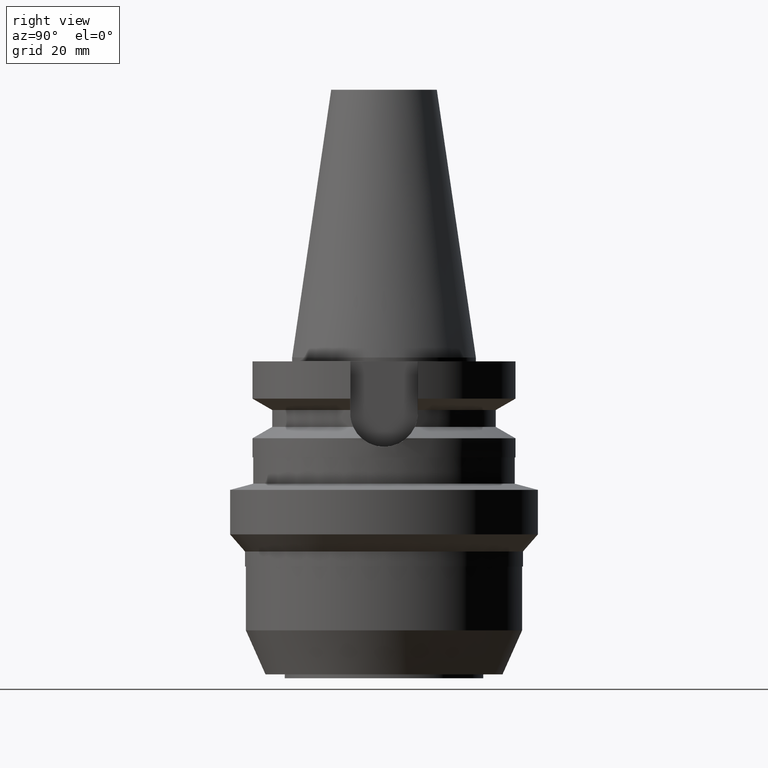
[diagram: clean part render]
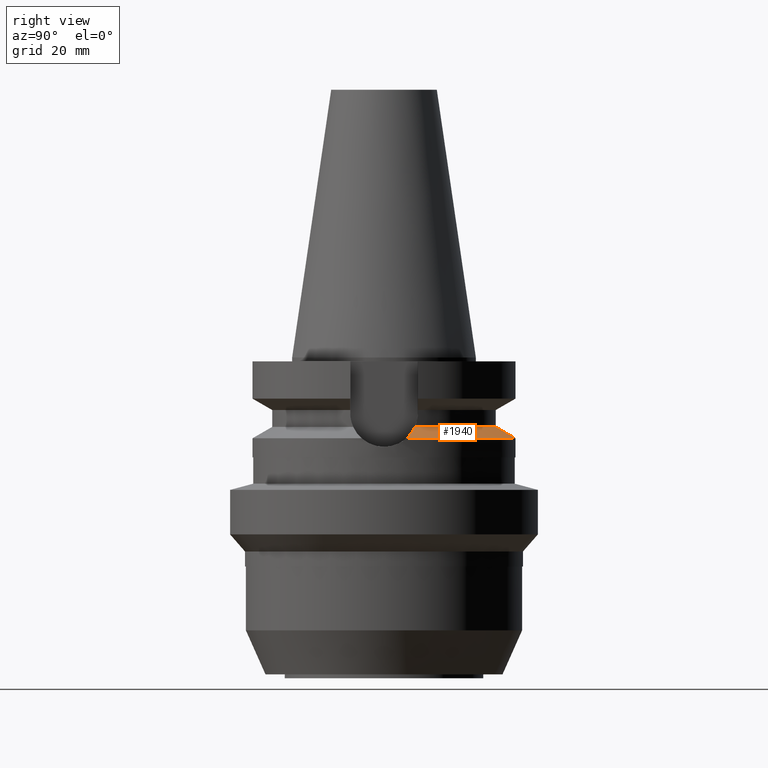
[diagram: same view with one face highlighted and labeled with its STEP entity id]
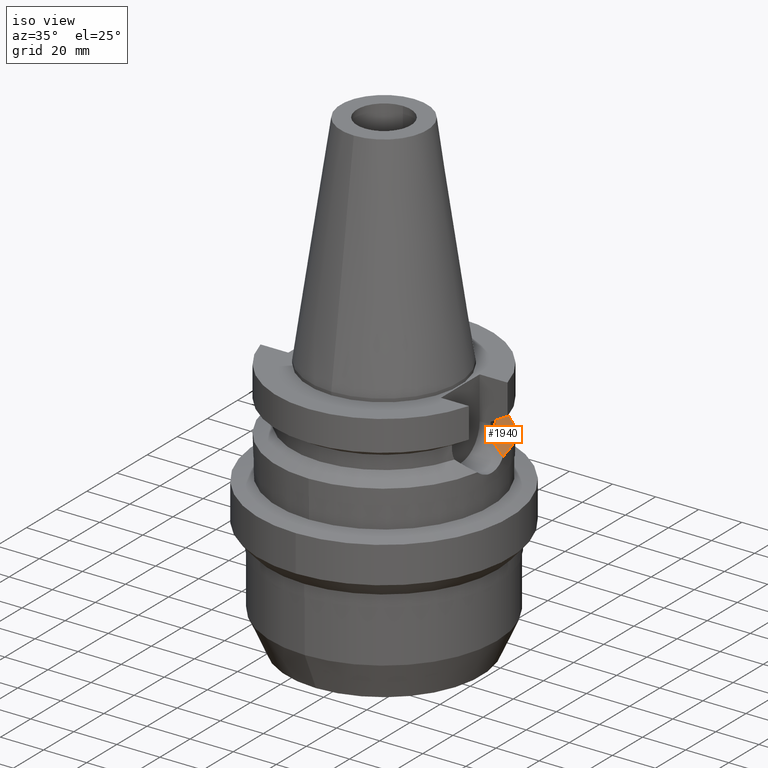
[diagram: same view with one face highlighted and labeled with its STEP entity id]
A machine part, right view. The second image highlights one B-rep face of the part: STEP entity #1940.
A second angle (iso view) of the same face is appended — the face is thin or edge-on in the first view.
In plain terms, the highlighted conical surface has half-angle 60 deg.
Its self-contained STEP definition (entity closure, byte-faithful):
#583=CARTESIAN_POINT('',(4.926250064874E1,8.556052234130E0,-3.073730776427E1));
#609=CARTESIAN_POINT('',(-4.085052569294E1,1.172538061688E1,-2.640718074535E1));
#610=CARTESIAN_POINT('',(-4.196772398692E1,1.146593540147E1,-2.698583574074E1));
#611=CARTESIAN_POINT('',(-4.408471845339E1,1.087427648019E1,-2.807895586455E1));
#612=CARTESIAN_POINT('',(-4.693477561632E1,9.783343029706E0,-2.954442286937E1));
#613=CARTESIAN_POINT('',(-4.853253796573E1,8.974952962019E0,-3.036346595207E1));
#614=CARTESIAN_POINT('',(-4.926250064874E1,8.556052234130E0,-3.073730776427E1));
#619=CARTESIAN_POINT('',(0.E0,0.E0,-3.073730776427E1));
#620=DIRECTION('',(0.E0,0.E0,-1.E0));
#621=DIRECTION('',(-9.852500129747E-1,1.711210446826E-1,0.E0));
#622=AXIS2_PLACEMENT_3D('',#619,#620,#621);
#627=CARTESIAN_POINT('',(0.E0,0.E0,-3.073730776427E1));
#628=DIRECTION('',(0.E0,0.E0,-1.E0));
#629=DIRECTION('',(0.E0,1.E0,0.E0));
#630=AXIS2_PLACEMENT_3D('',#627,#628,#629);
#635=CARTESIAN_POINT('',(4.926250064874E1,8.556052234130E0,-3.073730776427E1));
#636=CARTESIAN_POINT('',(4.853446079975E1,8.973849513052E0,-3.036445070892E1));
#637=CARTESIAN_POINT('',(4.693945517956E1,9.781250318963E0,-2.954682551157E1));
#638=CARTESIAN_POINT('',(4.408847198395E1,1.087313779766E1,-2.808089074029E1));
#639=CARTESIAN_POINT('',(4.196934671623E1,1.146555855757E1,-2.698667623649E1));
#640=CARTESIAN_POINT('',(4.085052569294E1,1.172538061688E1,-2.640718074535E1));
#645=CARTESIAN_POINT('',(0.E0,0.E0,-2.640718074535E1));
#646=DIRECTION('',(0.E0,0.E0,1.E0));
#647=DIRECTION('',(9.611888398338E-1,2.758913086325E-1,0.E0));
#648=AXIS2_PLACEMENT_3D('',#645,#646,#647);
#653=CARTESIAN_POINT('',(0.E0,0.E0,-2.640718074535E1));
#654=DIRECTION('',(0.E0,0.E0,1.E0));
#655=DIRECTION('',(0.E0,1.E0,0.E0));
#656=AXIS2_PLACEMENT_3D('',#653,#654,#655);
#1267=VERTEX_POINT('',#583);
#1269=CARTESIAN_POINT('',(0.E0,5.E1,-3.073730776427E1));
#1270=VERTEX_POINT('',#1269);
#1273=VERTEX_POINT('',#640);
#1288=VERTEX_POINT('',#609);
#1289=VERTEX_POINT('',#614);
#1290=CARTESIAN_POINT('',(0.E0,4.25E1,-2.640718074535E1));
#1291=VERTEX_POINT('',#1290);
#1923=CARTESIAN_POINT('',(0.E0,0.E0,-2.857224425481E1));
#1924=DIRECTION('',(0.E0,0.E0,-1.E0));
#1925=DIRECTION('',(0.E0,-1.E0,0.E0));
#1926=AXIS2_PLACEMENT_3D('',#1923,#1924,#1925);
#1927=CONICAL_SURFACE('',#1926,4.625E1,6.E1);
#1929=ORIENTED_EDGE('',*,*,#1928,.T.);
#1931=ORIENTED_EDGE('',*,*,#1930,.T.);
#1932=ORIENTED_EDGE('',*,*,#1885,.T.);
#1933=ORIENTED_EDGE('',*,*,#1902,.T.);
#1935=ORIENTED_EDGE('',*,*,#1934,.T.);
#1937=ORIENTED_EDGE('',*,*,#1936,.T.);
#1938=EDGE_LOOP('',(#1929,#1931,#1932,#1933,#1935,#1937));
#1939=FACE_OUTER_BOUND('',#1938,.F.);
#615=B_SPLINE_CURVE_WITH_KNOTS('',3,(#609,#610,#611,#612,#613,#614),
.UNSPECIFIED.,.F.,.F.,(4,1,1,4),(0.E0,3.333333333333E-1,6.666666666667E-1,1.E0),
.UNSPECIFIED.);
#623=CIRCLE('',#622,5.E1);
#631=CIRCLE('',#630,5.E1);
#641=B_SPLINE_CURVE_WITH_KNOTS('',3,(#635,#636,#637,#638,#639,#640),
.UNSPECIFIED.,.F.,.F.,(4,1,1,4),(0.E0,3.333333333333E-1,6.666666666667E-1,1.E0),
.UNSPECIFIED.);
#649=CIRCLE('',#648,4.25E1);
#657=CIRCLE('',#656,4.25E1);
#1885=EDGE_CURVE('',#1270,#1267,#631,.T.);
#1902=EDGE_CURVE('',#1267,#1273,#641,.T.);
#1928=EDGE_CURVE('',#1288,#1289,#615,.T.);
#1930=EDGE_CURVE('',#1289,#1270,#623,.T.);
#1934=EDGE_CURVE('',#1273,#1291,#649,.T.);
#1936=EDGE_CURVE('',#1291,#1288,#657,.T.);
#1940=ADVANCED_FACE('',(#1939),#1927,.T.);